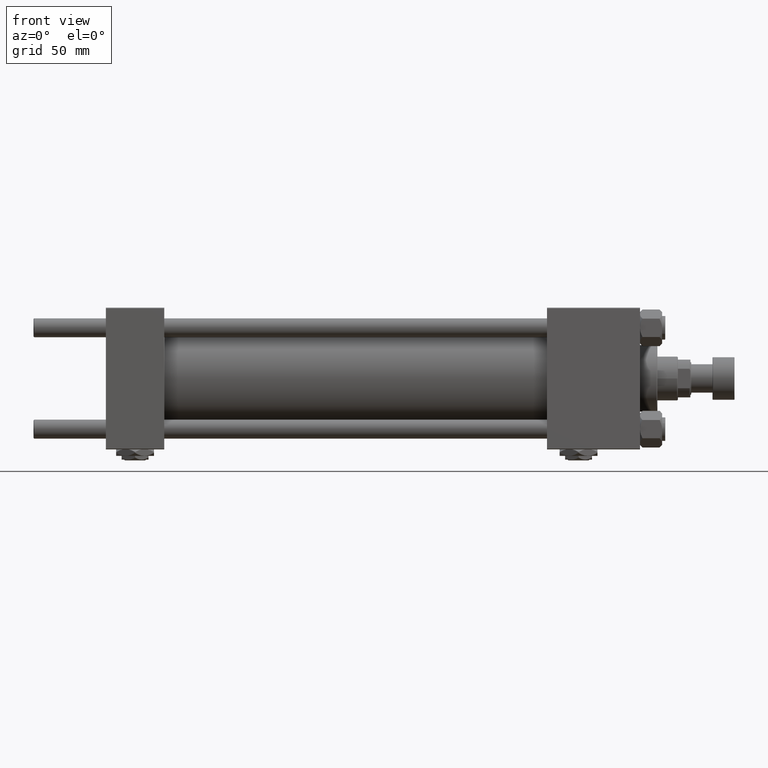
[diagram: clean part render]
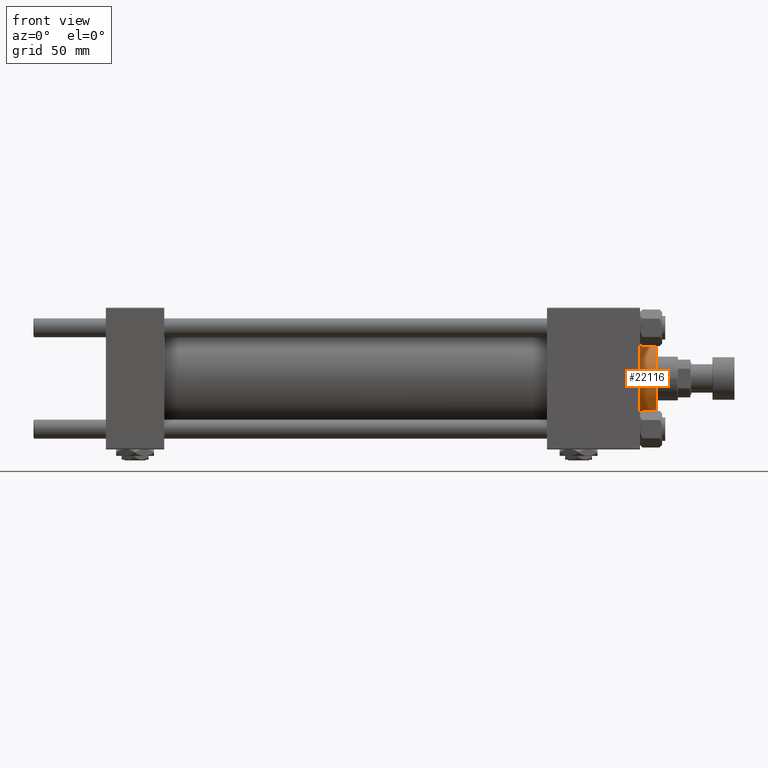
[diagram: same view with one face highlighted and labeled with its STEP entity id]
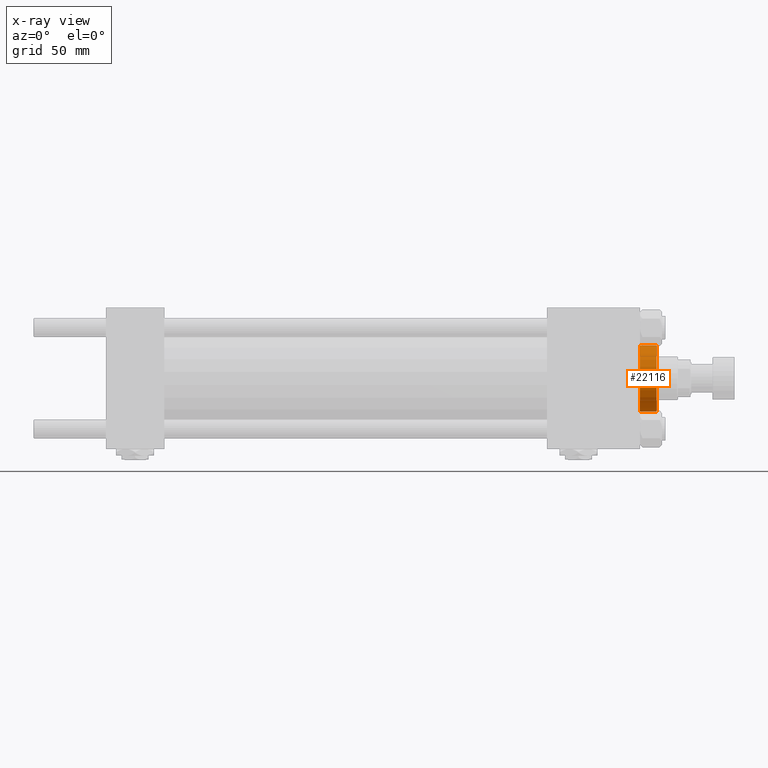
[diagram: x-ray of the same camera — body ghosted, the highlighted face saturated]
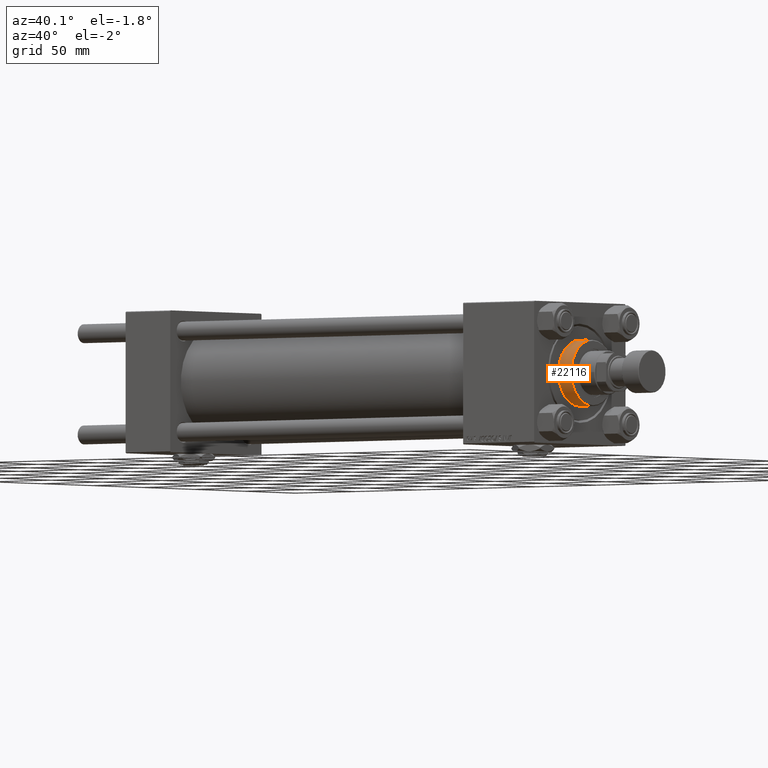
[diagram: same view with one face highlighted and labeled with its STEP entity id]
A machine part, front view. The second image highlights one B-rep face of the part: STEP entity #22116.
The next image is the same camera in x-ray: the body ghosted, the highlighted face saturated — about 0% of this face is hidden behind the body in this view.
A second angle (auxiliary view) of the same face is appended — the face is thin or edge-on in the first view.
In plain terms, the highlighted cylindrical surface (edge-blend (fillet) strip) has radius 21 mm, axis along (-1, -0, 0).
Its self-contained STEP definition (entity closure, byte-faithful):
#245 = DIRECTION ( 'NONE',  ( 0.000000000000000000, 0.000000000000000000, 1.000000000000000000 ) ) ;
#2938 = ORIENTED_EDGE ( 'NONE', *, *, #39697, .T. ) ;
#5287 = VERTEX_POINT ( 'NONE', #37950 ) ;
#5635 = CARTESIAN_POINT ( 'NONE',  ( 0.000000000000000000, 0.000000000000000000, 39.19999999999999574 ) ) ;
#10684 = AXIS2_PLACEMENT_3D ( 'NONE', #5635, #50333, #37880 ) ;
#11096 = VECTOR ( 'NONE', #17641, 1000.000000000000000 ) ;
#11870 = ORIENTED_EDGE ( 'NONE', *, *, #42142, .F. ) ;
#12089 = CARTESIAN_POINT ( 'NONE',  ( 21.00000000000000000, 2.571758278209441661E-15, 39.19999999999999574 ) ) ;
#14525 = CIRCLE ( 'NONE', #34798, 21.00000000000000000 ) ;
#14699 = DIRECTION ( 'NONE',  ( -0.000000000000000000, -0.000000000000000000, -1.000000000000000000 ) ) ;
#17086 = CARTESIAN_POINT ( 'NONE',  ( -21.00000000000000000, 0.000000000000000000, 39.69999999999999574 ) ) ;
#17641 = DIRECTION ( 'NONE',  ( -0.000000000000000000, -0.000000000000000000, -1.000000000000000000 ) ) ;
#19571 = AXIS2_PLACEMENT_3D ( 'NONE', #42976, #14699, #32602 ) ;
#21385 = DIRECTION ( 'NONE',  ( 1.000000000000000000, 0.000000000000000000, 0.000000000000000000 ) ) ;
#22116 = ADVANCED_FACE ( 'NONE', ( #47756 ), #23432, .T. ) ;
#23006 = CARTESIAN_POINT ( 'NONE',  ( -21.00000000000000000, 0.000000000000000000, 39.19999999999999574 ) ) ;
#23432 = CYLINDRICAL_SURFACE ( 'NONE', #19571, 21.00000000000000000 ) ;
#23790 = CARTESIAN_POINT ( 'NONE',  ( 21.00000000000000000, 2.571758278209441661E-15, 28.69999999999999929 ) ) ;
#24310 = CARTESIAN_POINT ( 'NONE',  ( 0.000000000000000000, 0.000000000000000000, 28.69999999999999929 ) ) ;
#26569 = ORIENTED_EDGE ( 'NONE', *, *, #44659, .T. ) ;
#28136 = VERTEX_POINT ( 'NONE', #23006 ) ;
#32602 = DIRECTION ( 'NONE',  ( -1.000000000000000000, 0.000000000000000000, 0.000000000000000000 ) ) ;
#32855 = VERTEX_POINT ( 'NONE', #12089 ) ;
#34040 = LINE ( 'NONE', #37213, #11096 ) ;
#34798 = AXIS2_PLACEMENT_3D ( 'NONE', #24310, #245, #21385 ) ;
#36667 = DIRECTION ( 'NONE',  ( -0.000000000000000000, -0.000000000000000000, -1.000000000000000000 ) ) ;
#37213 = CARTESIAN_POINT ( 'NONE',  ( 21.00000000000000000, 2.571758278209441661E-15, 39.69999999999999574 ) ) ;
#37557 = EDGE_CURVE ( 'NONE', #32855, #28136, #46137, .T. ) ;
#37880 = DIRECTION ( 'NONE',  ( 1.000000000000000000, 0.000000000000000000, 0.000000000000000000 ) ) ;
#37950 = CARTESIAN_POINT ( 'NONE',  ( -21.00000000000000000, 0.000000000000000000, 28.69999999999999929 ) ) ;
#38050 = VERTEX_POINT ( 'NONE', #23790 ) ;
#39697 = EDGE_CURVE ( 'NONE', #28136, #5287, #49103, .T. ) ;
#42142 = EDGE_CURVE ( 'NONE', #32855, #38050, #34040, .T. ) ;
#42976 = CARTESIAN_POINT ( 'NONE',  ( 0.000000000000000000, 0.000000000000000000, 39.69999999999999574 ) ) ;
#43097 = VECTOR ( 'NONE', #36667, 1000.000000000000000 ) ;
#44659 = EDGE_CURVE ( 'NONE', #5287, #38050, #14525, .T. ) ;
#46137 = CIRCLE ( 'NONE', #10684, 21.00000000000000000 ) ;
#46234 = EDGE_LOOP ( 'NONE', ( #11870, #51673, #2938, #26569 ) ) ;
#47756 = FACE_OUTER_BOUND ( 'NONE', #46234, .T. ) ;
#49103 = LINE ( 'NONE', #17086, #43097 ) ;
#50333 = DIRECTION ( 'NONE',  ( 0.000000000000000000, 0.000000000000000000, -1.000000000000000000 ) ) ;
#51673 = ORIENTED_EDGE ( 'NONE', *, *, #37557, .T. ) ;